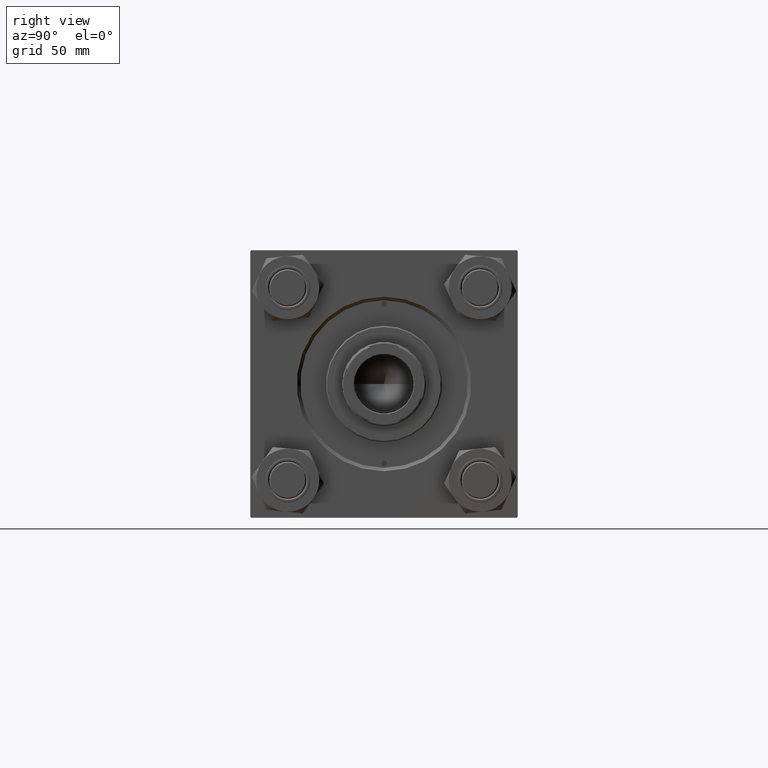
[diagram: clean part render]
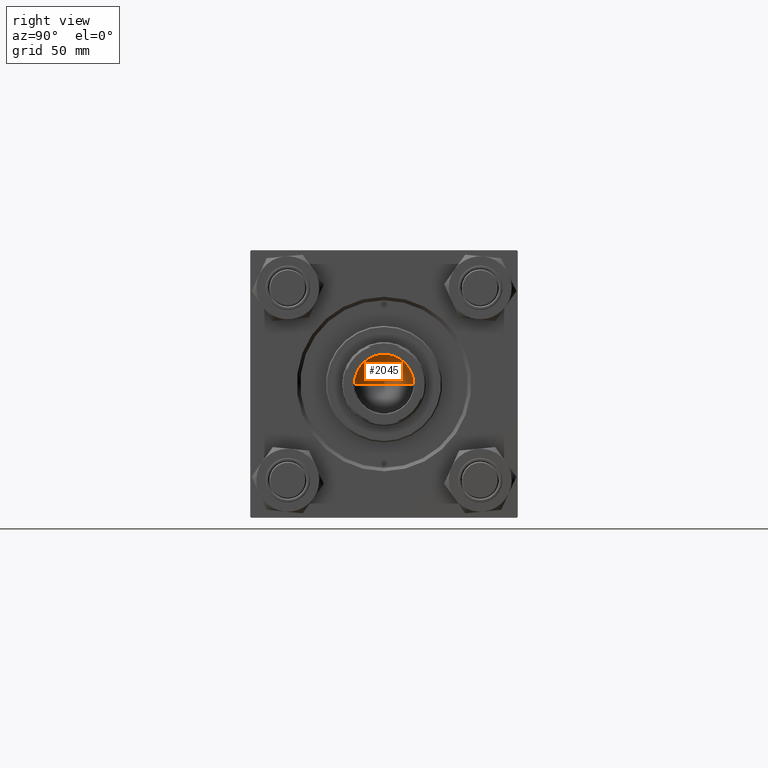
[diagram: same view with one face highlighted and labeled with its STEP entity id]
A machine part, right view. The second image highlights one B-rep face of the part: STEP entity #2045.
In plain terms, the highlighted conical surface has half-angle 59 deg.
Its self-contained STEP definition (entity closure, byte-faithful):
#808 = DIRECTION ( 'NONE',  ( -0.000000000000000000, -0.000000000000000000, 1.000000000000000000 ) ) ;
#1317 = CARTESIAN_POINT ( 'NONE',  ( 0.000000000000000000, 0.000000000000000000, 121.0000000000000142 ) ) ;
#1571 = DIRECTION ( 'NONE',  ( 1.000000000000000000, 0.000000000000000000, 0.000000000000000000 ) ) ;
#1805 = CIRCLE ( 'NONE', #46609, 12.74999999999998934 ) ;
#2045 = ADVANCED_FACE ( 'NONE', ( #36268 ), #18003, .F. ) ;
#4695 = DIRECTION ( 'NONE',  ( 0.8571673007021117785, 0.000000000000000000, 0.5150380749100550437 ) ) ;
#5135 = VERTEX_POINT ( 'NONE', #21410 ) ;
#5540 = CARTESIAN_POINT ( 'NONE',  ( -12.74999999999998934, 1.561424668912873928E-15, 121.0000000000000142 ) ) ;
#5901 = EDGE_CURVE ( 'NONE', #11546, #6905, #18363, .T. ) ;
#6905 = VERTEX_POINT ( 'NONE', #5540 ) ;
#11546 = VERTEX_POINT ( 'NONE', #48063 ) ;
#17157 = AXIS2_PLACEMENT_3D ( 'NONE', #1317, #808, #1571 ) ;
#18003 = CONICAL_SURFACE ( 'NONE', #17157, 12.74999999999998934, 1.029744258676653423 ) ;
#18363 = LINE ( 'NONE', #25237, #30313 ) ;
#19433 = ORIENTED_EDGE ( 'NONE', *, *, #5901, .T. ) ;
#20436 = CARTESIAN_POINT ( 'NONE',  ( 0.000000000000000000, 0.000000000000000000, 121.0000000000000142 ) ) ;
#21410 = CARTESIAN_POINT ( 'NONE',  ( 12.74999999999998934, 0.000000000000000000, 121.0000000000000142 ) ) ;
#24549 = EDGE_CURVE ( 'NONE', #11546, #5135, #27914, .T. ) ;
#25021 = DIRECTION ( 'NONE',  ( -0.000000000000000000, -0.000000000000000000, 1.000000000000000000 ) ) ;
#25237 = CARTESIAN_POINT ( 'NONE',  ( -12.74999999999998934, 1.561424668912873928E-15, 121.0000000000000142 ) ) ;
#26991 = EDGE_CURVE ( 'NONE', #6905, #5135, #1805, .T. ) ;
#27914 = LINE ( 'NONE', #39648, #34296 ) ;
#30313 = VECTOR ( 'NONE', #40787, 1000.000000000000000 ) ;
#34296 = VECTOR ( 'NONE', #4695, 1000.000000000000000 ) ;
#36268 = FACE_OUTER_BOUND ( 'NONE', #38642, .T. ) ;
#38642 = EDGE_LOOP ( 'NONE', ( #44084, #19433, #42169 ) ) ;
#39548 = DIRECTION ( 'NONE',  ( 1.000000000000000000, 0.000000000000000000, 0.000000000000000000 ) ) ;
#39648 = CARTESIAN_POINT ( 'NONE',  ( 12.74999999999998934, 0.000000000000000000, 121.0000000000000142 ) ) ;
#40787 = DIRECTION ( 'NONE',  ( -0.8571673007021117785, 1.049727191138617956E-16, 0.5150380749100550437 ) ) ;
#42169 = ORIENTED_EDGE ( 'NONE', *, *, #26991, .T. ) ;
#44084 = ORIENTED_EDGE ( 'NONE', *, *, #24549, .F. ) ;
#46609 = AXIS2_PLACEMENT_3D ( 'NONE', #20436, #25021, #39548 ) ;
#48063 = CARTESIAN_POINT ( 'NONE',  ( -1.410643066818227497E-14, 0.000000000000000000, 113.3390271073986071 ) ) ;